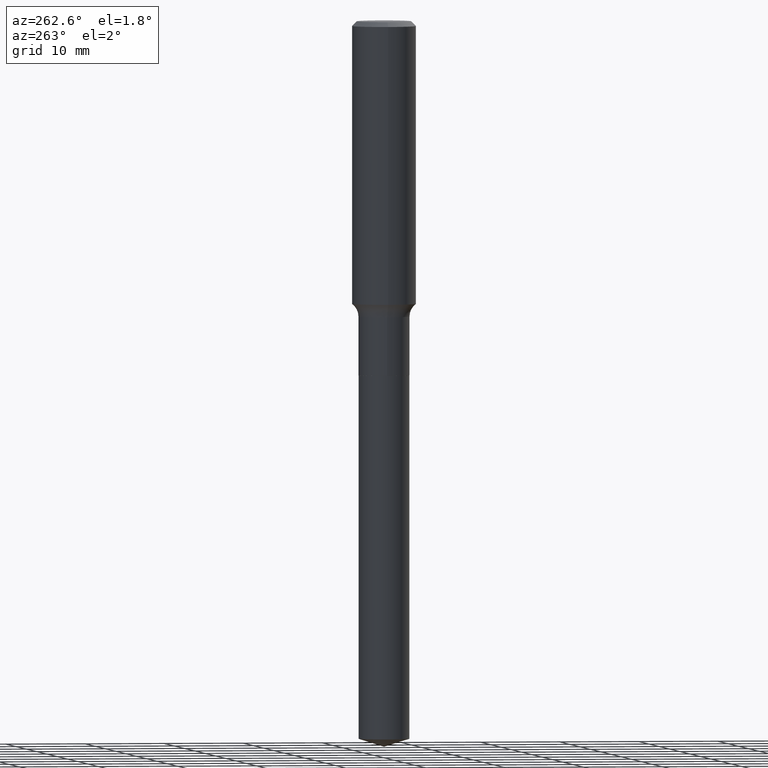
[diagram: clean part render]
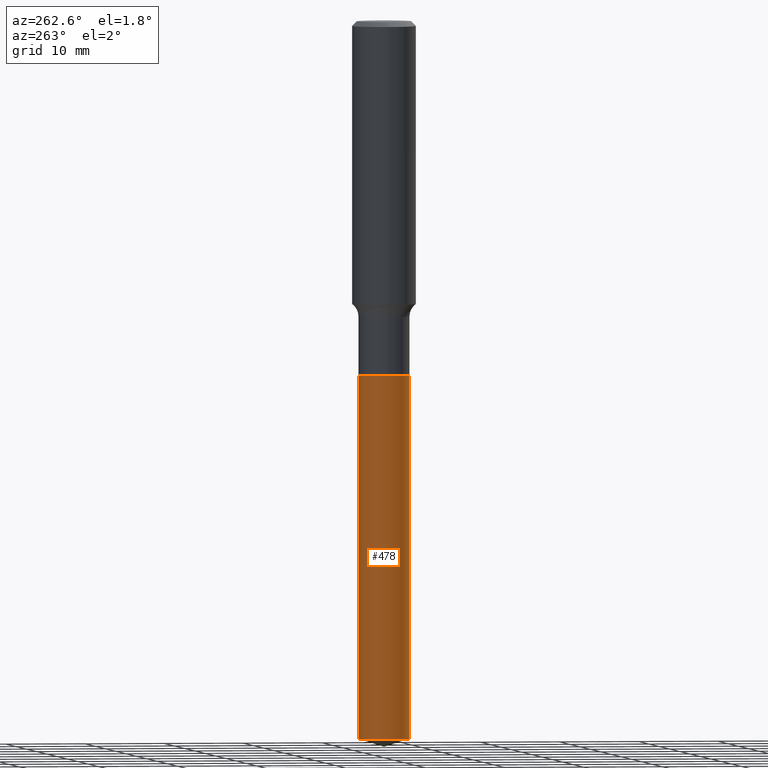
[diagram: same view with one face highlighted and labeled with its STEP entity id]
A machine part, auxiliary view. The second image highlights one B-rep face of the part: STEP entity #478.
In plain terms, the highlighted cylindrical surface (edge-blend (fillet) strip) has radius 3.2004 mm, axis along (-0, 0, 1).
Its self-contained STEP definition (entity closure, byte-faithful):
#6 = VECTOR ( 'NONE', #140, 39.37007874015748143 ) ;
#8 = DIRECTION ( 'NONE',  ( -6.982962677686265922E-15, -1.000000000000000000, 4.336266656609941617E-15 ) ) ;
#35 = CARTESIAN_POINT ( 'NONE',  ( 8.952838470578126208E-16, 0.1259999999999875941, -3.542972352601249764 ) ) ;
#39 = EDGE_LOOP ( 'NONE', ( #152, #119, #113, #351 ) ) ;
#51 = VERTEX_POINT ( 'NONE', #362 ) ;
#64 = CARTESIAN_POINT ( 'NONE',  ( 8.952838470578130152E-16, 0.1259999999999939224, -1.748100000000000653 ) ) ;
#87 = CYLINDRICAL_SURFACE ( 'NONE', #168, 0.1260000000000000009 ) ;
#88 = LINE ( 'NONE', #385, #231 ) ;
#105 = CARTESIAN_POINT ( 'NONE',  ( 4.274924020092237183E-29, -6.103458528431703746E-15, -1.748100000000000209 ) ) ;
#113 = ORIENTED_EDGE ( 'NONE', *, *, #383, .T. ) ;
#119 = ORIENTED_EDGE ( 'NONE', *, *, #295, .T. ) ;
#120 = LINE ( 'NONE', #396, #6 ) ;
#140 = DIRECTION ( 'NONE',  ( -2.445500076387621622E-29, 3.491436558133398134E-15, 1.000000000000000000 ) ) ;
#145 = DIRECTION ( 'NONE',  ( -2.445500076387621341E-29, 3.491436558133398134E-15, 1.000000000000000000 ) ) ;
#152 = ORIENTED_EDGE ( 'NONE', *, *, #424, .F. ) ;
#158 = CARTESIAN_POINT ( 'NONE',  ( 4.274924020092237183E-29, -6.103458528431703746E-15, -1.748100000000000209 ) ) ;
#168 = AXIS2_PLACEMENT_3D ( 'NONE', #158, #305, #426 ) ;
#175 = CIRCLE ( 'NONE', #342, 0.1260000000000000009 ) ;
#192 = CARTESIAN_POINT ( 'NONE',  ( -8.798532973884268532E-16, -0.1260000000000061071, -1.748099999999999543 ) ) ;
#231 = VECTOR ( 'NONE', #264, 39.37007874015748143 ) ;
#241 = AXIS2_PLACEMENT_3D ( 'NONE', #300, #145, #427 ) ;
#253 = VERTEX_POINT ( 'NONE', #64 ) ;
#258 = DIRECTION ( 'NONE',  ( -2.445500076387621341E-29, 3.491436558133398134E-15, 1.000000000000000000 ) ) ;
#264 = DIRECTION ( 'NONE',  ( -2.445500076387621622E-29, 3.491436558133398134E-15, 1.000000000000000000 ) ) ;
#281 = EDGE_CURVE ( 'NONE', #253, #433, #175, .T. ) ;
#295 = EDGE_CURVE ( 'NONE', #409, #51, #462, .T. ) ;
#300 = CARTESIAN_POINT ( 'NONE',  ( 8.664284495484621704E-29, -1.237014147748660081E-14, -3.542972352601248875 ) ) ;
#305 = DIRECTION ( 'NONE',  ( -2.445500076387621341E-29, 3.491436558133398134E-15, 1.000000000000000000 ) ) ;
#315 = FACE_OUTER_BOUND ( 'NONE', #39, .T. ) ;
#342 = AXIS2_PLACEMENT_3D ( 'NONE', #105, #258, #8 ) ;
#351 = ORIENTED_EDGE ( 'NONE', *, *, #281, .F. ) ;
#362 = CARTESIAN_POINT ( 'NONE',  ( -8.798532973883826770E-16, -0.1260000000000123521, -3.542972352601248431 ) ) ;
#383 = EDGE_CURVE ( 'NONE', #51, #433, #120, .T. ) ;
#385 = CARTESIAN_POINT ( 'NONE',  ( 8.952838470577688390E-16, 0.1259999999999938947, -1.748100000000000653 ) ) ;
#396 = CARTESIAN_POINT ( 'NONE',  ( -8.798532973884268532E-16, -0.1260000000000061071, -1.748099999999999543 ) ) ;
#409 = VERTEX_POINT ( 'NONE', #35 ) ;
#424 = EDGE_CURVE ( 'NONE', #409, #253, #88, .T. ) ;
#426 = DIRECTION ( 'NONE',  ( -6.982962677686265922E-15, -1.000000000000000000, 4.336266656609941617E-15 ) ) ;
#427 = DIRECTION ( 'NONE',  ( -6.982962677686265922E-15, -1.000000000000000000, 4.336266656609941617E-15 ) ) ;
#433 = VERTEX_POINT ( 'NONE', #192 ) ;
#462 = CIRCLE ( 'NONE', #241, 0.1260000000000000009 ) ;
#478 = ADVANCED_FACE ( 'NONE', ( #315 ), #87, .T. ) ;